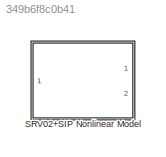
MODEL slx_349b6f8c0b41
KIND model
CONFIG AbsTol = auto
CONFIG EnableMultiTasking = off
CONFIG FixedStep = auto
CONFIG MaxStep = auto
CONFIG MinStep = auto
CONFIG RelTol = 1e-3
CONFIG SampleTimeConstraint = Unconstrained
CONFIG Solver = VariableStepAuto
CONFIG SolverName = VariableStepAuto
CONFIG StartTime = 0.0
CONFIG StopTime = 10.0
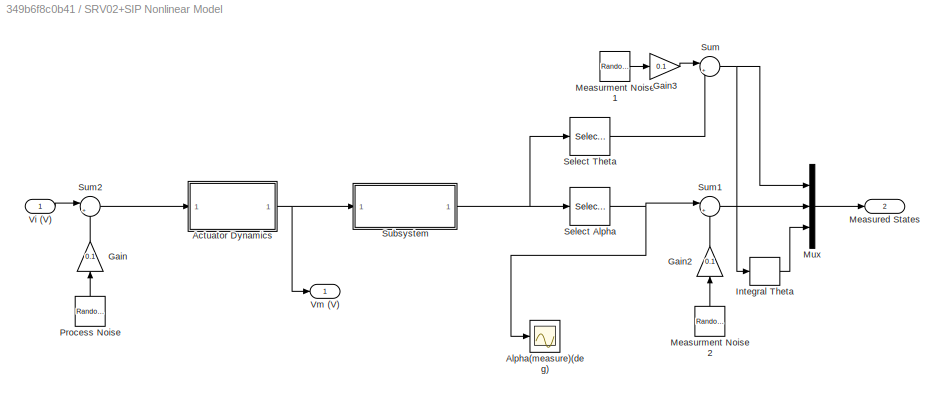
BLOCK [SubSystem] SRV02+SIP Nonlinear Model
  Ports = [1, 2]
  RequestExecContextInheritance = off
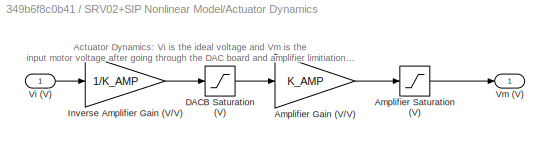
BLOCK [SubSystem] SRV02+SIP Nonlinear Model/Actuator Dynamics
  Ports = [1, 1]
  RequestExecContextInheritance = off
BLOCK [Gain] SRV02+SIP Nonlinear Model/Actuator Dynamics/Amplifier Gain (V//V)
  Gain = K_AMP
  OutDataTypeStr = Inherit: Inherit via internal rule
  ParamDataTypeStr = Inherit: Inherit via internal rule
  SaturateOnIntegerOverflow = off
BLOCK [Saturate] SRV02+SIP Nonlinear Model/Actuator Dynamics/Amplifier Saturation (V)
  InputPortMap = u0
  LowerLimit = -VMAX_AMP
  Ports = [1, 1]
  UpperLimit = VMAX_AMP
BLOCK [Saturate] SRV02+SIP Nonlinear Model/Actuator Dynamics/DACB Saturation (V)
  InputPortMap = u0
  LowerLimit = -VMAX_DAC
  Ports = [1, 1]
  UpperLimit = VMAX_DAC
BLOCK [Gain] SRV02+SIP Nonlinear Model/Actuator Dynamics/Inverse Amplifier Gain (V//V)
  Gain = 1/K_AMP
  OutDataTypeStr = Inherit: Inherit via internal rule
  ParamDataTypeStr = Inherit: Inherit via internal rule
  SaturateOnIntegerOverflow = off
BLOCK [Inport] SRV02+SIP Nonlinear Model/Actuator Dynamics/Vi (V)
  IconDisplay = Port number
BLOCK [Outport] SRV02+SIP Nonlinear Model/Actuator Dynamics/Vm (V)
  IconDisplay = Port number
BLOCK [Scope] SRV02+SIP Nonlinear Model/Alpha(measure)(deg)
  Floating = off
  NumInputPorts = 1
  Ports = [1]
  ScopeSpecificationString = Simulink.scopes.TimeScopeBlockCfg('CurrentConfiguration', extmgr.ConfigurationSet(extmgr.Configuration('Core','General UI',true),extmgr.Configuration('Core','Source UI',true),extmgr.Configuration('Sources','WiredSimulink',true,'DataLoggingVariableName','ScopeData1','DataLoggingSaveFormat','Array','DataLoggingDecimation','1','DataLoggingDecimateData',true),extmgr.Configuration('Visuals','Time Domai...<+1692ch>
BLOCK [Gain] SRV02+SIP Nonlinear Model/Gain
  Gain = 0.1
  Multiplication = Matrix(K*u)
BLOCK [Gain] SRV02+SIP Nonlinear Model/Gain2
  Gain = 0.1
  Multiplication = Matrix(K*u)
BLOCK [Gain] SRV02+SIP Nonlinear Model/Gain3
  Gain = 0.1
  Multiplication = Matrix(K*u)
BLOCK [DiscreteIntegrator] SRV02+SIP Nonlinear Model/Integral Theta
  ICPrevOutput = DiscIntNeverNeededParam
  ICPrevScaledInput = DiscIntNeverNeededParam
  Ports = [1, 1]
  SampleTime = 0.002
BLOCK [Outport] SRV02+SIP Nonlinear Model/Measured States
  IconDisplay = Port number
  Port = 2
BLOCK [RandomNumber] SRV02+SIP Nonlinear Model/Measurment Noise 1
  Variance = 0.01
BLOCK [RandomNumber] SRV02+SIP Nonlinear Model/Measurment Noise 2
  Variance = 0.01
BLOCK [Mux] SRV02+SIP Nonlinear Model/Mux
  DisplayOption = bar
  Inputs = 3
  Ports = [3, 1]
BLOCK [RandomNumber] SRV02+SIP Nonlinear Model/Process Noise
  Variance = 50
BLOCK [Selector] SRV02+SIP Nonlinear Model/Select Alpha
  IndexOptions = Index vector (dialog)
  Indices = 2
  InputPortWidth = 2
  OutputSizes = 1
  Ports = [1, 1]
BLOCK [Selector] SRV02+SIP Nonlinear Model/Select Theta
  IndexOptions = Index vector (dialog)
  Indices = 1
  InputPortWidth = 2
  OutputSizes = 1
  Ports = [1, 1]
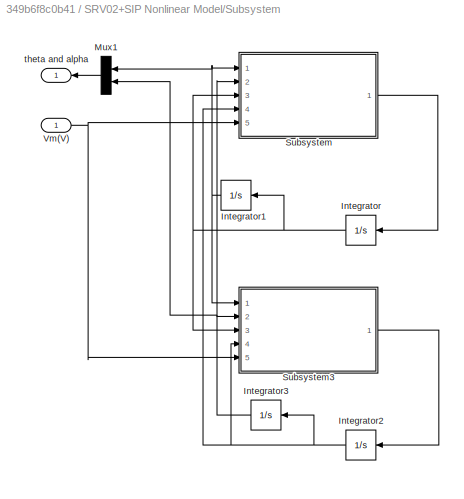
BLOCK [SubSystem] SRV02+SIP Nonlinear Model/Subsystem
  Ports = [1, 1]
  RequestExecContextInheritance = off
BLOCK [Integrator] SRV02+SIP Nonlinear Model/Subsystem/Integrator
  InitialCondition = init_condi(3)
  Ports = [1, 1]
BLOCK [Integrator] SRV02+SIP Nonlinear Model/Subsystem/Integrator1
  InitialCondition = init_condi(1)
  Ports = [1, 1]
BLOCK [Integrator] SRV02+SIP Nonlinear Model/Subsystem/Integrator2
  InitialCondition = init_condi(4)
  Ports = [1, 1]
BLOCK [Integrator] SRV02+SIP Nonlinear Model/Subsystem/Integrator3
  InitialCondition = init_condi(2)
  Ports = [1, 1]
BLOCK [Mux] SRV02+SIP Nonlinear Model/Subsystem/Mux1
  DisplayOption = bar
  Inputs = 2
  Ports = [2, 1]
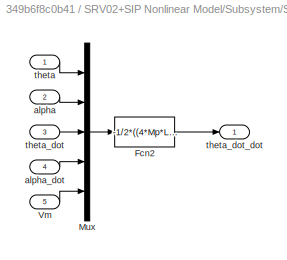
BLOCK [SubSystem] SRV02+SIP Nonlinear Model/Subsystem/Subsystem
  Ports = [5, 1]
  RequestExecContextInheritance = off
BLOCK [Fcn] SRV02+SIP Nonlinear Model/Subsystem/Subsystem/Fcn2
  Expr = -1/2*((4*Mp*Lp^2*u(2)*u(1)*u(4)-8*Co*u(5)+8*Dr*u(3))*Jp+(Mp^2*Lp^4*u(2)*u(3)+4*Mp*Lp*Lr*Dp)*u(4))/((4*Jr+4*Mp*Lr^2)*Jp+Mp*Lp^2*Jr)-(-1/2)*((Mp^2*Lp^3*Lr*u(3)^2+20*Mp^2*Lp^2*Lr*g)*u(2)-2*Mp*Lp^2*Dr*u(3)+2*Mp*Lp^2*Co*u(5))/((4*Jr+4*Mp*Lr^2)*Jp+Mp*Lp^2*Jr)
BLOCK [Mux] SRV02+SIP Nonlinear Model/Subsystem/Subsystem/Mux
  DisplayOption = bar
  Inputs = 5
  Ports = [5, 1]
BLOCK [Inport] SRV02+SIP Nonlinear Model/Subsystem/Subsystem/Vm
  IconDisplay = Port number
  Port = 5
BLOCK [Inport] SRV02+SIP Nonlinear Model/Subsystem/Subsystem/alpha
  IconDisplay = Port number
  Port = 2
BLOCK [Inport] SRV02+SIP Nonlinear Model/Subsystem/Subsystem/alpha_dot
  IconDisplay = Port number
  Port = 4
BLOCK [Inport] SRV02+SIP Nonlinear Model/Subsystem/Subsystem/theta
  IconDisplay = Port number
BLOCK [Inport] SRV02+SIP Nonlinear Model/Subsystem/Subsystem/theta_dot
  IconDisplay = Port number
  Port = 3
BLOCK [Outport] SRV02+SIP Nonlinear Model/Subsystem/Subsystem/theta_dot_dot
  IconDisplay = Port number
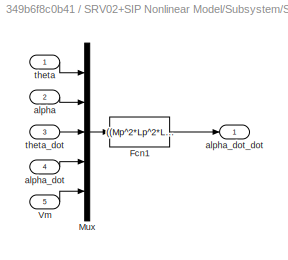
BLOCK [SubSystem] SRV02+SIP Nonlinear Model/Subsystem/Subsystem3
  Ports = [5, 1]
  RequestExecContextInheritance = off
BLOCK [Fcn] SRV02+SIP Nonlinear Model/Subsystem/Subsystem3/Fcn1
  Expr = ((Mp^2*Lp^2*Lr^2+Mp*Lp^2*Jr)*u(3)^2+20*Jr*Mp*Lp*g+20*Mp^2*Lr^2*Lp*g)*u(2)/((4*Jr+4*Mp*Lr^2)*Jp+Mp*Lp^2*Jr)+(2*Mp*Lr*Lp*Co*u(5)-2*Mp*Lr*Lp*Dr*u(3)-(Mp^2*Lp^3*Lr*u(2)*u(3)+4*Jr*Dp+4*Mp*Lr^2*Dp)*u(4))/((4*Jr+4*Mp*Lr^2)*Jp+Mp*Lp^2*Jr)
BLOCK [Mux] SRV02+SIP Nonlinear Model/Subsystem/Subsystem3/Mux
  DisplayOption = bar
  Inputs = 5
  Ports = [5, 1]
BLOCK [Inport] SRV02+SIP Nonlinear Model/Subsystem/Subsystem3/Vm
  IconDisplay = Port number
  Port = 5
BLOCK [Inport] SRV02+SIP Nonlinear Model/Subsystem/Subsystem3/alpha
  IconDisplay = Port number
  Port = 2
BLOCK [Inport] SRV02+SIP Nonlinear Model/Subsystem/Subsystem3/alpha_dot
  IconDisplay = Port number
  Port = 4
BLOCK [Outport] SRV02+SIP Nonlinear Model/Subsystem/Subsystem3/alpha_dot_dot
  IconDisplay = Port number
BLOCK [Inport] SRV02+SIP Nonlinear Model/Subsystem/Subsystem3/theta
  IconDisplay = Port number
BLOCK [Inport] SRV02+SIP Nonlinear Model/Subsystem/Subsystem3/theta_dot
  IconDisplay = Port number
  Port = 3
BLOCK [Inport] SRV02+SIP Nonlinear Model/Subsystem/Vm(V)
  IconDisplay = Port number
BLOCK [Outport] SRV02+SIP Nonlinear Model/Subsystem/theta and alpha
  IconDisplay = Port number
BLOCK [Sum] SRV02+SIP Nonlinear Model/Sum
  IconShape = round
  InputSameDT = off
  Inputs = |++
  OutDataTypeStr = Inherit: Inherit via internal rule
  Ports = [2, 1]
  SaturateOnIntegerOverflow = off
BLOCK [Sum] SRV02+SIP Nonlinear Model/Sum1
  IconShape = round
  InputSameDT = off
  Inputs = |++
  OutDataTypeStr = Inherit: Inherit via internal rule
  Ports = [2, 1]
  SaturateOnIntegerOverflow = off
BLOCK [Sum] SRV02+SIP Nonlinear Model/Sum2
  IconShape = round
  InputSameDT = off
  Inputs = |++
  OutDataTypeStr = Inherit: Inherit via internal rule
  Ports = [2, 1]
  SaturateOnIntegerOverflow = off
BLOCK [Inport] SRV02+SIP Nonlinear Model/Vi (V)
  IconDisplay = Port number
BLOCK [Outport] SRV02+SIP Nonlinear Model/Vm (V)
  IconDisplay = Port number
ANNOTATION SRV02+SIP Nonlinear Model/Actuator Dynamics: Actuator Dynamics: Vi is the ideal voltage and Vm is the input motor voltage after going through the DAC board and amplifier limitiations.
LINE SRV02+SIP Nonlinear Model/Actuator Dynamics/Amplifier Gain (V//V):1 -> SRV02+SIP Nonlinear Model/Actuator Dynamics/Amplifier Saturation (V):1
LINE SRV02+SIP Nonlinear Model/Actuator Dynamics/Amplifier Saturation (V):1 -> SRV02+SIP Nonlinear Model/Actuator Dynamics/Vm (V):1
LINE SRV02+SIP Nonlinear Model/Actuator Dynamics/DACB Saturation (V):1 -> SRV02+SIP Nonlinear Model/Actuator Dynamics/Amplifier Gain (V//V):1
LINE SRV02+SIP Nonlinear Model/Actuator Dynamics/Inverse Amplifier Gain (V//V):1 -> SRV02+SIP Nonlinear Model/Actuator Dynamics/DACB Saturation (V):1
LINE SRV02+SIP Nonlinear Model/Actuator Dynamics/Vi (V):1 -> SRV02+SIP Nonlinear Model/Actuator Dynamics/Inverse Amplifier Gain (V//V):1
NET SRV02+SIP Nonlinear Model/Actuator Dynamics:1 -> SRV02+SIP Nonlinear Model/Subsystem:1, SRV02+SIP Nonlinear Model/Vm (V):1
LINE SRV02+SIP Nonlinear Model/Gain2:1 -> SRV02+SIP Nonlinear Model/Sum1:2
LINE SRV02+SIP Nonlinear Model/Gain3:1 -> SRV02+SIP Nonlinear Model/Sum:1
LINE SRV02+SIP Nonlinear Model/Gain:1 -> SRV02+SIP Nonlinear Model/Sum2:2
LINE SRV02+SIP Nonlinear Model/Integral Theta:1 -> SRV02+SIP Nonlinear Model/Mux:3
LINE SRV02+SIP Nonlinear Model/Measurment Noise 1:1 -> SRV02+SIP Nonlinear Model/Gain3:1
LINE SRV02+SIP Nonlinear Model/Measurment Noise 2:1 -> SRV02+SIP Nonlinear Model/Gain2:1
LINE SRV02+SIP Nonlinear Model/Mux:1 -> SRV02+SIP Nonlinear Model/Measured States:1
LINE SRV02+SIP Nonlinear Model/Process Noise:1 -> SRV02+SIP Nonlinear Model/Gain:1
NET SRV02+SIP Nonlinear Model/Select Alpha:1 -> SRV02+SIP Nonlinear Model/Alpha(measure)(deg):1, SRV02+SIP Nonlinear Model/Sum1:1
LINE SRV02+SIP Nonlinear Model/Select Theta:1 -> SRV02+SIP Nonlinear Model/Sum:2
NET SRV02+SIP Nonlinear Model/Subsystem/Integrator1:1 -> SRV02+SIP Nonlinear Model/Subsystem/Mux1:1, SRV02+SIP Nonlinear Model/Subsystem/Subsystem3:1, SRV02+SIP Nonlinear Model/Subsystem/Subsystem:1
NET SRV02+SIP Nonlinear Model/Subsystem/Integrator2:1 -> SRV02+SIP Nonlinear Model/Subsystem/Integrator3:1, SRV02+SIP Nonlinear Model/Subsystem/Subsystem3:4, SRV02+SIP Nonlinear Model/Subsystem/Subsystem:4
NET SRV02+SIP Nonlinear Model/Subsystem/Integrator3:1 -> SRV02+SIP Nonlinear Model/Subsystem/Mux1:2, SRV02+SIP Nonlinear Model/Subsystem/Subsystem3:2, SRV02+SIP Nonlinear Model/Subsystem/Subsystem:2
NET SRV02+SIP Nonlinear Model/Subsystem/Integrator:1 -> SRV02+SIP Nonlinear Model/Subsystem/Integrator1:1, SRV02+SIP Nonlinear Model/Subsystem/Subsystem3:3, SRV02+SIP Nonlinear Model/Subsystem/Subsystem:3
LINE SRV02+SIP Nonlinear Model/Subsystem/Mux1:1 -> SRV02+SIP Nonlinear Model/Subsystem/theta and alpha:1
LINE SRV02+SIP Nonlinear Model/Subsystem/Subsystem/Fcn2:1 -> SRV02+SIP Nonlinear Model/Subsystem/Subsystem/theta_dot_dot:1
LINE SRV02+SIP Nonlinear Model/Subsystem/Subsystem/Mux:1 -> SRV02+SIP Nonlinear Model/Subsystem/Subsystem/Fcn2:1
LINE SRV02+SIP Nonlinear Model/Subsystem/Subsystem/Vm:1 -> SRV02+SIP Nonlinear Model/Subsystem/Subsystem/Mux:5
LINE SRV02+SIP Nonlinear Model/Subsystem/Subsystem/alpha:1 -> SRV02+SIP Nonlinear Model/Subsystem/Subsystem/Mux:2
LINE SRV02+SIP Nonlinear Model/Subsystem/Subsystem/alpha_dot:1 -> SRV02+SIP Nonlinear Model/Subsystem/Subsystem/Mux:4
LINE SRV02+SIP Nonlinear Model/Subsystem/Subsystem/theta:1 -> SRV02+SIP Nonlinear Model/Subsystem/Subsystem/Mux:1
LINE SRV02+SIP Nonlinear Model/Subsystem/Subsystem/theta_dot:1 -> SRV02+SIP Nonlinear Model/Subsystem/Subsystem/Mux:3
LINE SRV02+SIP Nonlinear Model/Subsystem/Subsystem3/Fcn1:1 -> SRV02+SIP Nonlinear Model/Subsystem/Subsystem3/alpha_dot_dot:1
LINE SRV02+SIP Nonlinear Model/Subsystem/Subsystem3/Mux:1 -> SRV02+SIP Nonlinear Model/Subsystem/Subsystem3/Fcn1:1
LINE SRV02+SIP Nonlinear Model/Subsystem/Subsystem3/Vm:1 -> SRV02+SIP Nonlinear Model/Subsystem/Subsystem3/Mux:5
LINE SRV02+SIP Nonlinear Model/Subsystem/Subsystem3/alpha:1 -> SRV02+SIP Nonlinear Model/Subsystem/Subsystem3/Mux:2
LINE SRV02+SIP Nonlinear Model/Subsystem/Subsystem3/alpha_dot:1 -> SRV02+SIP Nonlinear Model/Subsystem/Subsystem3/Mux:4
LINE SRV02+SIP Nonlinear Model/Subsystem/Subsystem3/theta:1 -> SRV02+SIP Nonlinear Model/Subsystem/Subsystem3/Mux:1
LINE SRV02+SIP Nonlinear Model/Subsystem/Subsystem3/theta_dot:1 -> SRV02+SIP Nonlinear Model/Subsystem/Subsystem3/Mux:3
LINE SRV02+SIP Nonlinear Model/Subsystem/Subsystem3:1 -> SRV02+SIP Nonlinear Model/Subsystem/Integrator2:1
LINE SRV02+SIP Nonlinear Model/Subsystem/Subsystem:1 -> SRV02+SIP Nonlinear Model/Subsystem/Integrator:1
NET SRV02+SIP Nonlinear Model/Subsystem/Vm(V):1 -> SRV02+SIP Nonlinear Model/Subsystem/Subsystem3:5, SRV02+SIP Nonlinear Model/Subsystem/Subsystem:5
NET SRV02+SIP Nonlinear Model/Subsystem:1 -> SRV02+SIP Nonlinear Model/Select Alpha:1, SRV02+SIP Nonlinear Model/Select Theta:1
LINE SRV02+SIP Nonlinear Model/Sum1:1 -> SRV02+SIP Nonlinear Model/Mux:2
LINE SRV02+SIP Nonlinear Model/Sum2:1 -> SRV02+SIP Nonlinear Model/Actuator Dynamics:1
NET SRV02+SIP Nonlinear Model/Sum:1 -> SRV02+SIP Nonlinear Model/Integral Theta:1, SRV02+SIP Nonlinear Model/Mux:1
LINE SRV02+SIP Nonlinear Model/Vi (V):1 -> SRV02+SIP Nonlinear Model/Sum2:1
note: NET lines group one-source signal fan-out (src -> all destinations, sorted); 1:1 wires keep LINE
